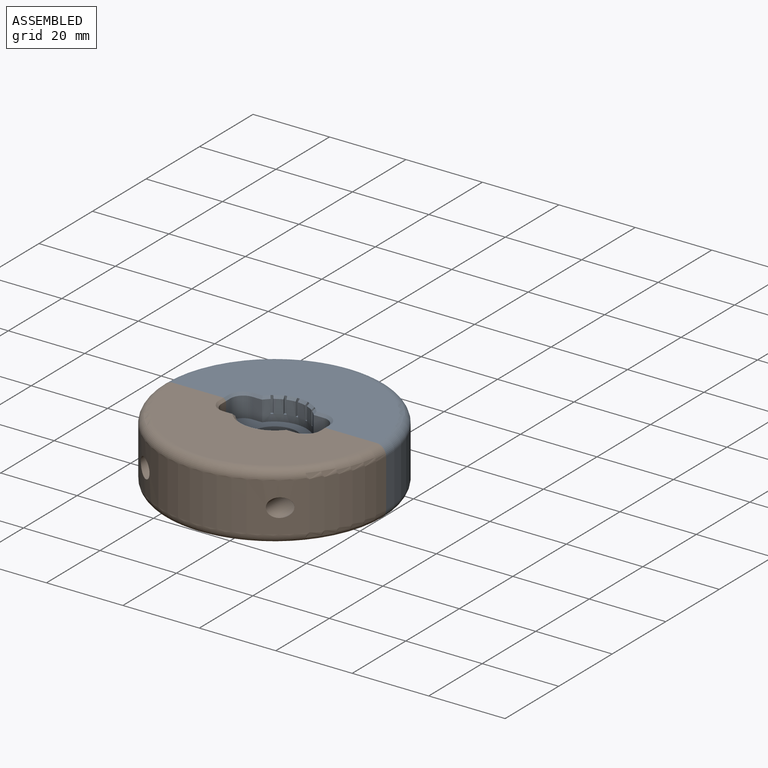
[diagram: assembled view]
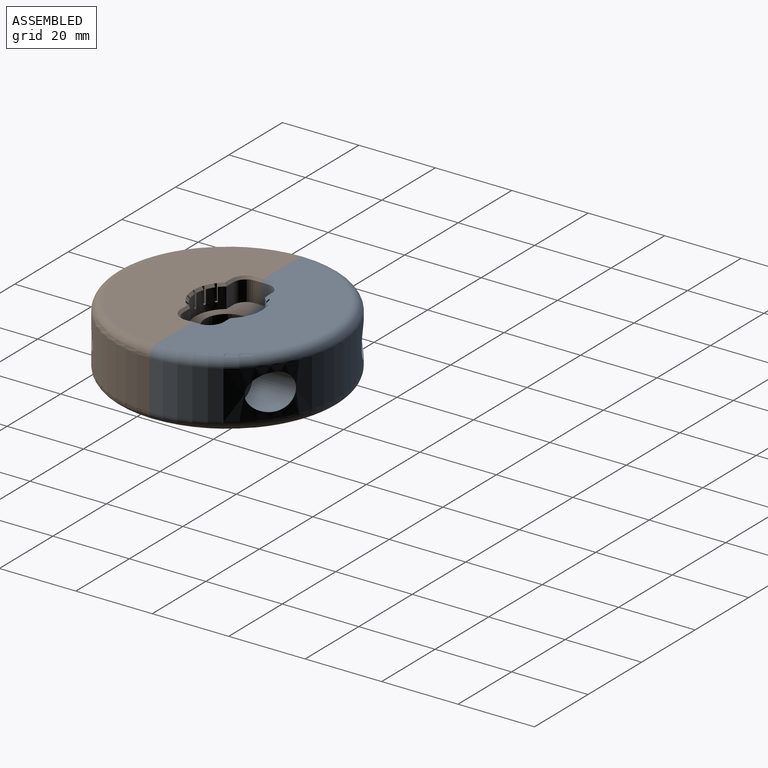
[diagram: assembled view, second angle]
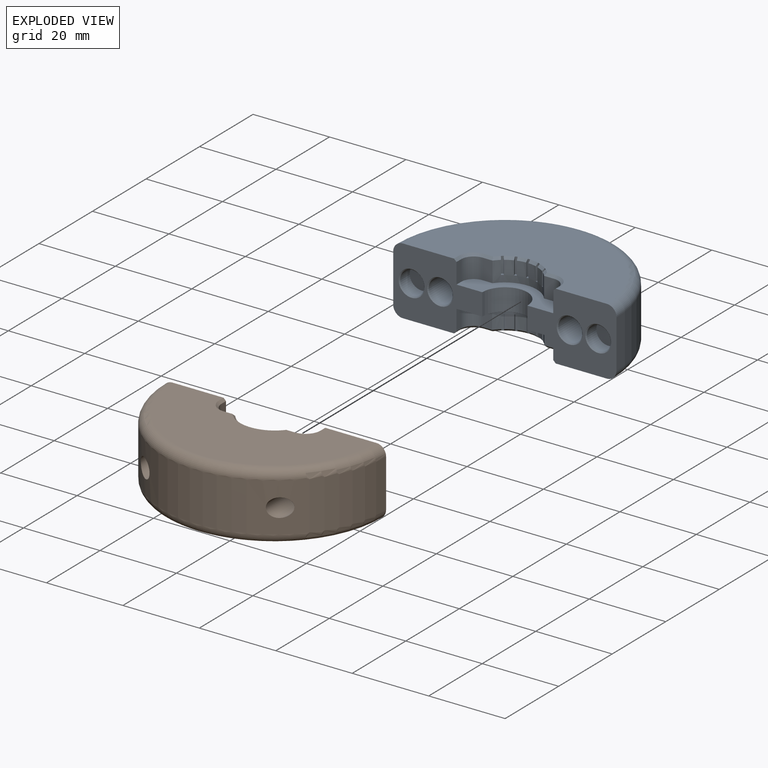
[diagram: exploded view]
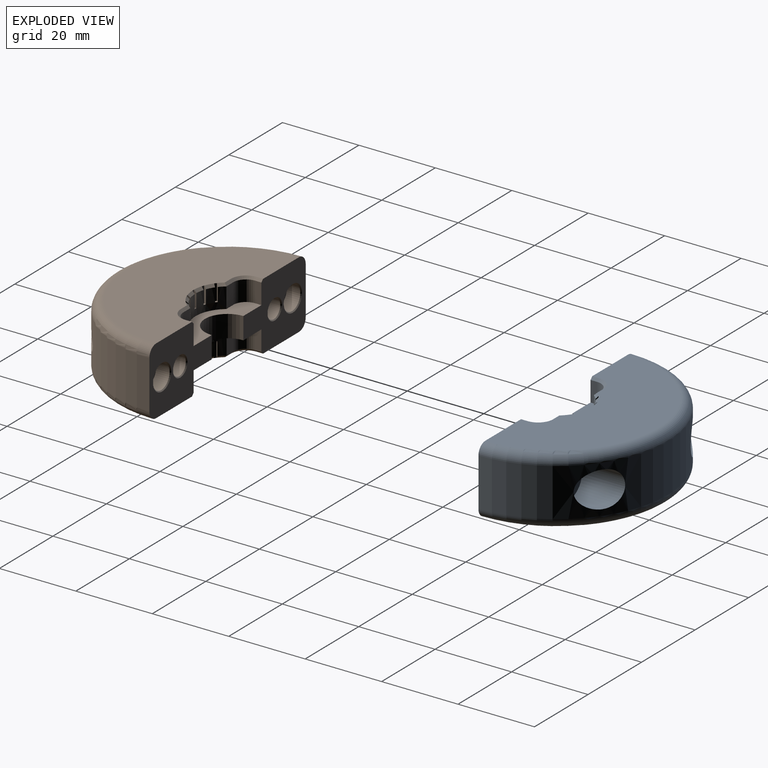
[diagram: exploded view, second angle]
ASSEMBLY  parts=2 mates=2
PART A: 102 faces, bbox 63.2x31.6x17.7 mm
  f0: cylinder r=8.48mm len=13.67mm, axis (0,0,-1), area 74mm2, adj f1,f2,f3,f4,f5,f6,f27,f30
  f1: cone r=8.48mm half-angle=45deg, axis (0,0,-1), area 2.1mm2, adj f0,f17,f83,f85
  f2: cone r=8.48mm half-angle=45deg, axis (0,0,-1), area 2.1mm2, adj f0,f17,f69,f81
  f3: cone r=8.48mm half-angle=45deg, axis (0,0,-1), area 1.7mm2, adj f0,f17,f47,f79
  f4: cone r=8.48mm half-angle=45deg, axis (0,0,-1), area 2.1mm2, adj f0,f17,f75,f78
  f5: cone r=8.48mm half-angle=45deg, axis (0,0,-1), area 1.7mm2, adj f0,f17,f45,f87
  f6: cone r=8.48mm half-angle=45deg, axis (0,0,-1), area 2.1mm2, adj f0,f17,f70,f74
  f7: cylinder r=8.48mm len=13.48mm, axis (0,0,1), area 72.3mm2, adj f8,f9,f10,f11,f12,f13,f20,f23
  f8: cone r=8.48mm half-angle=45deg, axis (0,0,1), area 2.1mm2, adj f7,f18,f49,f67
  f9: cone r=8.48mm half-angle=45deg, axis (0,0,1), area 2.1mm2, adj f7,f18,f61,f66
  f10: cone r=8.48mm half-angle=45deg, axis (0,0,1), area 1.6mm2, adj f7,f18,f39,f59
  f11: cone r=8.48mm half-angle=45deg, axis (0,0,1), area 2.1mm2, adj f7,f18,f55,f58
  f12: cone r=8.48mm half-angle=45deg, axis (0,0,1), area 1.6mm2, adj f7,f18,f38,f63
  f13: cone r=8.48mm half-angle=45deg, axis (0,0,1), area 2.1mm2, adj f7,f18,f50,f54
  f14: plane 23.3x17.68mm, normal (0,-1,0), area 255.6mm2, adj f16,f17,f18,f19,f20,f26,f27,f28
  f15: plane 23.3x17.68mm, normal (0,-1,0), area 255.6mm2, adj f16,f17,f18,f19,f20,f21,f27,f33
  f16: cylinder r=5.91mm len=11.81mm, axis (0,0,1), area 106.5mm2, adj f14,f15,f20,f27
  f17: plane 53.34x26.67mm, normal (0,0,-1), area 939mm2, adj f1,f2,f3,f4,f5,f6,f14,f15
  f18: plane 53.34x26.67mm, normal (0,0,1), area 940.8mm2, adj f8,f9,f10,f11,f12,f13,f14,f15
  f19: cylinder r=29.21mm len=58.42mm, axis (0,0,1), area 983.4mm2, adj f14,f15,f34,f35,f99,f101
  f20: plane 25.32x8.36mm, normal (0,0,1), area 99.1mm2, adj f7,f14,f15,f16,f21,f22,f23,f24
  f21: plane 5.33x1.72mm, normal (-1,0,0), area 9.2mm2, adj f15,f20,f22,f41
  f22: cylinder r=3.3mm len=5.33mm, axis (0,0,1), area 27.7mm2, adj f20,f21,f23,f40
  f23: plane 5.33x2.62mm, normal (0,-1,0), area 14mm2, adj f7,f20,f22,f39
  f24: plane 5.33x2.62mm, normal (0,-1,0), area 14mm2, adj f7,f20,f25,f38
  f25: cylinder r=3.3mm len=5.33mm, axis (0,0,1), area 27.7mm2, adj f20,f24,f26,f37
  f26: plane 5.33x1.72mm, normal (1,0,0), area 9.2mm2, adj f14,f20,f25,f36
  f27: plane 25.32x8.48mm, normal (0,0,-1), area 100.8mm2, adj f0,f14,f15,f16,f28,f29,f30,f31
  f28: plane 5.33x1.72mm, normal (1,0,0), area 9.2mm2, adj f14,f27,f29,f44
  f29: cylinder r=3.3mm len=5.33mm, axis (0,0,-1), area 27.7mm2, adj f27,f28,f30,f46
  f30: plane 5.33x2.52mm, normal (0,-1,0), area 13.5mm2, adj f0,f27,f29,f47
  f31: plane 5.33x2.52mm, normal (0,-1,0), area 13.5mm2, adj f0,f27,f32,f45
  f32: cylinder r=3.3mm len=5.33mm, axis (0,0,-1), area 27.7mm2, adj f27,f31,f33,f43
  f33: plane 5.33x1.72mm, normal (-1,0,0), area 9.2mm2, adj f15,f27,f32,f42
  f34: torus R=26.67mm, axis (0,0,1), area 354.6mm2, adj f14,f15,f18,f19
  f35: torus R=26.67mm, axis (0,0,1), area 354.6mm2, adj f14,f15,f17,f19
  f36: plane 1.72x0.64mm, normal (0.71,0,0.71), area 1.5mm2, adj f14,f18,f26,f37
  f37: cone r=3.3mm half-angle=45deg, axis (0,0,1), area 5.1mm2, adj f18,f25,f36,f38
  f38: plane 2.63x0.64mm, normal (0,-0.71,0.71), area 2.2mm2, adj f12,f18,f24,f37
  f39: plane 2.63x0.64mm, normal (0,-0.71,0.71), area 2.2mm2, adj f10,f18,f23,f40
  f40: cone r=3.3mm half-angle=45deg, axis (0,0,1), area 5.1mm2, adj f18,f22,f39,f41
  f41: plane 1.72x0.64mm, normal (-0.71,0,0.71), area 1.5mm2, adj f15,f18,f21,f40
  f42: plane 1.72x0.64mm, normal (-0.71,0,-0.71), area 1.5mm2, adj f15,f17,f33,f43
  f43: cone r=3.3mm half-angle=45deg, axis (0,0,-1), area 5.1mm2, adj f17,f32,f42,f45
  f44: plane 1.72x0.64mm, normal (0.71,0,-0.71), area 1.5mm2, adj f14,f17,f28,f46
  f45: plane 2.53x0.64mm, normal (0,-0.71,-0.71), area 2.1mm2, adj f5,f17,f31,f43
  f46: cone r=3.3mm half-angle=45deg, axis (0,0,-1), area 5.1mm2, adj f17,f29,f44,f47
  f47: plane 2.53x0.64mm, normal (0,-0.71,-0.71), area 2.1mm2, adj f3,f17,f30,f46
  f48: plane 0.64x0.61mm, normal (0,0,1), area 0.4mm2, adj f7,f49,f50,f51
  f49: plane 4.19x0.64mm, normal (1,0,0), area 2.5mm2, adj f7,f8,f48,f51
  f50: plane 4.19x0.64mm, normal (-1,0,0), area 2.5mm2, adj f7,f13,f48,f51
  f51: plane 4.19x0.61mm, normal (0,-1,0), area 2.6mm2, adj f18,f48,f49,f50
  f52: plane 0.8x0.78mm, normal (0,0,1), area 0.4mm2, adj f7,f53,f54,f55
  f53: plane 4.19x0.58mm, normal (-0.33,-0.95,0), area 2.6mm2, adj f18,f52,f54,f55
  f54: plane 4.19x0.6mm, normal (0.95,-0.33,0), area 2.5mm2, adj f7,f13,f52,f53
  f55: plane 4.19x0.6mm, normal (-0.95,0.33,0), area 2.5mm2, adj f7,f11,f52,f53
  f56: plane 0.88x0.87mm, normal (0,0,1), area 0.4mm2, adj f7,f57,f58,f59
  f57: plane 4.19x0.48mm, normal (-0.62,-0.79,0), area 2.6mm2, adj f18,f56,f58,f59
  f58: plane 4.19x0.5mm, normal (0.79,-0.62,0), area 2.5mm2, adj f7,f11,f56,f57
  f59: plane 4.19x0.5mm, normal (-0.79,0.62,0), area 2.5mm2, adj f7,f10,f56,f57
  f60: plane 0.88x0.87mm, normal (0,0,1), area 0.4mm2, adj f7,f61,f62,f63
  f61: plane 4.19x0.5mm, normal (-0.79,-0.62,0), area 2.5mm2, adj f7,f9,f60,f62
  f62: plane 4.19x0.48mm, normal (0.62,-0.79,0), area 2.6mm2, adj f18,f60,f61,f63
  f63: plane 4.19x0.5mm, normal (0.79,0.62,0), area 2.5mm2, adj f7,f12,f60,f62
  f64: plane 0.8x0.78mm, normal (0,0,1), area 0.4mm2, adj f7,f65,f66,f67
  f65: plane 4.19x0.58mm, normal (0.33,-0.95,0), area 2.6mm2, adj f18,f64,f66,f67
  f66: plane 4.19x0.6mm, normal (0.95,0.33,0), area 2.5mm2, adj f7,f9,f64,f65
  f67: plane 4.19x0.6mm, normal (-0.95,-0.33,0), area 2.5mm2, adj f7,f8,f64,f65
  f68: plane 0.64x0.61mm, normal (0,0,-1), area 0.4mm2, adj f0,f69,f70,f71
  f69: plane 4.19x0.64mm, normal (-1,0,0), area 2.5mm2, adj f0,f2,f68,f71
  f70: plane 4.19x0.64mm, normal (1,0,0), area 2.5mm2, adj f0,f6,f68,f71
  f71: plane 4.19x0.61mm, normal (0,-1,0), area 2.6mm2, adj f17,f68,f69,f70
  f72: plane 0.8x0.78mm, normal (0,0,-1), area 0.4mm2, adj f0,f73,f74,f75
  f73: plane 4.19x0.58mm, normal (0.33,-0.95,0), area 2.6mm2, adj f17,f72,f74,f75
  f74: plane 4.19x0.6mm, normal (-0.95,-0.33,0), area 2.5mm2, adj f0,f6,f72,f73
  f75: plane 4.19x0.6mm, normal (0.95,0.33,0), area 2.5mm2, adj f0,f4,f72,f73
  f76: plane 0.88x0.87mm, normal (0,0,-1), area 0.4mm2, adj f0,f77,f78,f79
  f77: plane 4.19x0.48mm, normal (0.62,-0.79,0), area 2.6mm2, adj f17,f76,f78,f79
  f78: plane 4.19x0.5mm, normal (-0.79,-0.62,0), area 2.5mm2, adj f0,f4,f76,f77
  f79: plane 4.19x0.5mm, normal (0.79,0.62,0), area 2.5mm2, adj f0,f3,f76,f77
  f80: plane 0.8x0.78mm, normal (0,0,-1), area 0.4mm2, adj f0,f81,f82,f83
  f81: plane 4.19x0.6mm, normal (0.95,-0.33,0), area 2.5mm2, adj f0,f2,f80,f82
  f82: plane 4.19x0.58mm, normal (-0.33,-0.95,0), area 2.6mm2, adj f17,f80,f81,f83
  f83: plane 4.19x0.6mm, normal (-0.95,0.33,0), area 2.5mm2, adj f0,f1,f80,f82
  f84: plane 0.88x0.87mm, normal (0,0,-1), area 0.4mm2, adj f0,f85,f86,f87
  f85: plane 4.19x0.5mm, normal (0.79,-0.62,0), area 2.5mm2, adj f0,f1,f84,f86
  f86: plane 4.19x0.48mm, normal (-0.62,-0.79,0), area 2.6mm2, adj f17,f84,f85,f87
  f87: plane 4.19x0.5mm, normal (-0.79,0.62,0), area 2.5mm2, adj f0,f5,f84,f86
  f88: cylinder r=3.14mm len=14.99mm, axis (0,-1,0), area 296mm2, adj f96,f100
  f89: cylinder r=3.14mm len=14.99mm, axis (0,-1,0), area 296mm2, adj f95,f98
  f90: cylinder r=3.14mm len=6.29mm, axis (0,-1,0), area 70.2mm2, adj f91,f94
  f91: plane 6.29x6.29mm, normal (0,-1,0), area 31mm2, adj f90
  f92: cylinder r=3.14mm len=6.29mm, axis (0,-1,0), area 70.2mm2, adj f93,f97
  f93: plane 6.29x6.29mm, normal (0,-1,0), area 31mm2, adj f92
  f94: cone r=3.14mm half-angle=45deg, axis (0,-1,0), area 7.4mm2, adj f15,f90
  f95: cone r=3.14mm half-angle=45deg, axis (0,-1,0), area 7.4mm2, adj f15,f89
  f96: cone r=3.14mm half-angle=45deg, axis (0,-1,0), area 7.4mm2, adj f14,f88
  f97: cone r=3.14mm half-angle=45deg, axis (0,-1,0), area 7.4mm2, adj f14,f92
  f98: plane 9.4x9.4mm, normal (0,1,0), area 38.3mm2, adj f89,f99
  f99: cylinder r=4.7mm len=11.28mm, axis (0,-1,0), area 241.9mm2, adj f19,f98
  f100: plane 9.4x9.4mm, normal (0,1,0), area 38.3mm2, adj f88,f101
  f101: cylinder r=4.7mm len=11.28mm, axis (0,-1,0), area 241.8mm2, adj f19,f100
PART B: 98 faces, bbox 63.2x31.6x17.7 mm
  f0: cylinder r=8.48mm len=13.67mm, axis (0,0,-1), area 74mm2, adj f1,f2,f3,f4,f5,f6,f27,f30
  f1: cone r=8.48mm half-angle=45deg, axis (0,0,-1), area 2.1mm2, adj f0,f17,f83,f85
  f2: cone r=8.48mm half-angle=45deg, axis (0,0,-1), area 2.1mm2, adj f0,f17,f69,f81
  f3: cone r=8.48mm half-angle=45deg, axis (0,0,-1), area 1.7mm2, adj f0,f17,f47,f79
  f4: cone r=8.48mm half-angle=45deg, axis (0,0,-1), area 2.1mm2, adj f0,f17,f75,f78
  f5: cone r=8.48mm half-angle=45deg, axis (0,0,-1), area 1.7mm2, adj f0,f17,f45,f87
  f6: cone r=8.48mm half-angle=45deg, axis (0,0,-1), area 2.1mm2, adj f0,f17,f70,f74
  f7: cylinder r=8.48mm len=13.48mm, axis (0,0,1), area 72.3mm2, adj f8,f9,f10,f11,f12,f13,f20,f23
  f8: cone r=8.48mm half-angle=45deg, axis (0,0,1), area 2.1mm2, adj f7,f18,f63,f65
  f9: cone r=8.48mm half-angle=45deg, axis (0,0,1), area 2.1mm2, adj f7,f18,f49,f61
  f10: cone r=8.48mm half-angle=45deg, axis (0,0,1), area 1.6mm2, adj f7,f18,f39,f59
  f11: cone r=8.48mm half-angle=45deg, axis (0,0,1), area 2.1mm2, adj f7,f18,f55,f58
  f12: cone r=8.48mm half-angle=45deg, axis (0,0,1), area 1.6mm2, adj f7,f18,f38,f67
  f13: cone r=8.48mm half-angle=45deg, axis (0,0,1), area 2.1mm2, adj f7,f18,f50,f54
  f14: plane 23.3x17.68mm, normal (0,-1,0), area 269.1mm2, adj f16,f17,f18,f19,f20,f26,f27,f28
  f15: plane 23.3x17.68mm, normal (0,-1,0), area 269.1mm2, adj f16,f17,f18,f19,f20,f21,f27,f33
  f16: cylinder r=5.91mm len=11.81mm, axis (0,0,1), area 106.5mm2, adj f14,f15,f20,f27
  f17: plane 53.34x26.67mm, normal (0,0,-1), area 939mm2, adj f1,f2,f3,f4,f5,f6,f14,f15
  f18: plane 53.34x26.67mm, normal (0,0,1), area 940.8mm2, adj f8,f9,f10,f11,f12,f13,f14,f15
  f19: cylinder r=29.21mm len=58.42mm, axis (0,0,1), area 1109.1mm2, adj f14,f15,f34,f35,f88,f89
  f20: plane 25.32x8.36mm, normal (0,0,1), area 99.1mm2, adj f7,f14,f15,f16,f21,f22,f23,f24
  f21: plane 5.33x1.72mm, normal (-1,0,0), area 9.2mm2, adj f15,f20,f22,f41
  f22: cylinder r=3.3mm len=5.33mm, axis (0,0,1), area 27.7mm2, adj f20,f21,f23,f40
  f23: plane 5.33x2.62mm, normal (0,-1,0), area 14mm2, adj f7,f20,f22,f39
  f24: plane 5.33x2.62mm, normal (0,-1,0), area 14mm2, adj f7,f20,f25,f38
  f25: cylinder r=3.3mm len=5.33mm, axis (0,0,1), area 27.7mm2, adj f20,f24,f26,f37
  f26: plane 5.33x1.72mm, normal (1,0,0), area 9.2mm2, adj f14,f20,f25,f36
  f27: plane 25.32x8.48mm, normal (0,0,-1), area 100.8mm2, adj f0,f14,f15,f16,f28,f29,f30,f31
  f28: plane 5.33x1.72mm, normal (1,0,0), area 9.2mm2, adj f14,f27,f29,f44
  f29: cylinder r=3.3mm len=5.33mm, axis (0,0,-1), area 27.7mm2, adj f27,f28,f30,f46
  f30: plane 5.33x2.52mm, normal (0,-1,0), area 13.5mm2, adj f0,f27,f29,f47
  f31: plane 5.33x2.52mm, normal (0,-1,0), area 13.5mm2, adj f0,f27,f32,f45
  f32: cylinder r=3.3mm len=5.33mm, axis (0,0,-1), area 27.7mm2, adj f27,f31,f33,f43
  f33: plane 5.33x1.72mm, normal (-1,0,0), area 9.2mm2, adj f15,f27,f32,f42
  f34: torus R=26.67mm, axis (0,0,1), area 354.6mm2, adj f14,f15,f18,f19
  f35: torus R=26.67mm, axis (0,0,1), area 354.6mm2, adj f14,f15,f17,f19
  f36: plane 1.72x0.64mm, normal (0.71,0,0.71), area 1.5mm2, adj f14,f18,f26,f37
  f37: cone r=3.3mm half-angle=45deg, axis (0,0,1), area 5.1mm2, adj f18,f25,f36,f38
  f38: plane 2.63x0.64mm, normal (0,-0.71,0.71), area 2.2mm2, adj f12,f18,f24,f37
  f39: plane 2.63x0.64mm, normal (0,-0.71,0.71), area 2.2mm2, adj f10,f18,f23,f40
  f40: cone r=3.3mm half-angle=45deg, axis (0,0,1), area 5.1mm2, adj f18,f22,f39,f41
  f41: plane 1.72x0.64mm, normal (-0.71,0,0.71), area 1.5mm2, adj f15,f18,f21,f40
  f42: plane 1.72x0.64mm, normal (-0.71,0,-0.71), area 1.5mm2, adj f15,f17,f33,f43
  f43: cone r=3.3mm half-angle=45deg, axis (0,0,-1), area 5.1mm2, adj f17,f32,f42,f45
  f44: plane 1.72x0.64mm, normal (0.71,0,-0.71), area 1.5mm2, adj f14,f17,f28,f46
  f45: plane 2.53x0.64mm, normal (0,-0.71,-0.71), area 2.1mm2, adj f5,f17,f31,f43
  f46: cone r=3.3mm half-angle=45deg, axis (0,0,-1), area 5.1mm2, adj f17,f29,f44,f47
  f47: plane 2.53x0.64mm, normal (0,-0.71,-0.71), area 2.1mm2, adj f3,f17,f30,f46
  f48: plane 0.64x0.61mm, normal (0,0,1), area 0.4mm2, adj f7,f49,f50,f51
  f49: plane 4.19x0.64mm, normal (1,0,0), area 2.5mm2, adj f7,f9,f48,f51
  f50: plane 4.19x0.64mm, normal (-1,0,0), area 2.5mm2, adj f7,f13,f48,f51
  f51: plane 4.19x0.61mm, normal (0,-1,0), area 2.6mm2, adj f18,f48,f49,f50
  f52: plane 0.8x0.78mm, normal (0,0,1), area 0.4mm2, adj f7,f53,f54,f55
  f53: plane 4.19x0.58mm, normal (-0.33,-0.95,0), area 2.6mm2, adj f18,f52,f54,f55
  f54: plane 4.19x0.6mm, normal (0.95,-0.33,0), area 2.5mm2, adj f7,f13,f52,f53
  f55: plane 4.19x0.6mm, normal (-0.95,0.33,0), area 2.5mm2, adj f7,f11,f52,f53
  f56: plane 0.88x0.87mm, normal (0,0,1), area 0.4mm2, adj f7,f57,f58,f59
  f57: plane 4.19x0.48mm, normal (-0.62,-0.79,0), area 2.6mm2, adj f18,f56,f58,f59
  f58: plane 4.19x0.5mm, normal (0.79,-0.62,0), area 2.5mm2, adj f7,f11,f56,f57
  f59: plane 4.19x0.5mm, normal (-0.79,0.62,0), area 2.5mm2, adj f7,f10,f56,f57
  f60: plane 0.8x0.78mm, normal (0,0,1), area 0.4mm2, adj f7,f61,f62,f63
  f61: plane 4.19x0.6mm, normal (-0.95,-0.33,0), area 2.5mm2, adj f7,f9,f60,f62
  f62: plane 4.19x0.58mm, normal (0.33,-0.95,0), area 2.6mm2, adj f18,f60,f61,f63
  f63: plane 4.19x0.6mm, normal (0.95,0.33,0), area 2.5mm2, adj f7,f8,f60,f62
  f64: plane 0.88x0.87mm, normal (0,0,1), area 0.4mm2, adj f7,f65,f66,f67
  f65: plane 4.19x0.5mm, normal (-0.79,-0.62,0), area 2.5mm2, adj f7,f8,f64,f66
  f66: plane 4.19x0.48mm, normal (0.62,-0.79,0), area 2.6mm2, adj f18,f64,f65,f67
  f67: plane 4.19x0.5mm, normal (0.79,0.62,0), area 2.5mm2, adj f7,f12,f64,f66
  f68: plane 0.64x0.61mm, normal (0,0,-1), area 0.4mm2, adj f0,f69,f70,f71
  f69: plane 4.19x0.64mm, normal (-1,0,0), area 2.5mm2, adj f0,f2,f68,f71
  f70: plane 4.19x0.64mm, normal (1,0,0), area 2.5mm2, adj f0,f6,f68,f71
  f71: plane 4.19x0.61mm, normal (0,-1,0), area 2.6mm2, adj f17,f68,f69,f70
  f72: plane 0.8x0.78mm, normal (0,0,-1), area 0.4mm2, adj f0,f73,f74,f75
  f73: plane 4.19x0.58mm, normal (0.33,-0.95,0), area 2.6mm2, adj f17,f72,f74,f75
  f74: plane 4.19x0.6mm, normal (-0.95,-0.33,0), area 2.5mm2, adj f0,f6,f72,f73
  f75: plane 4.19x0.6mm, normal (0.95,0.33,0), area 2.5mm2, adj f0,f4,f72,f73
  f76: plane 0.88x0.87mm, normal (0,0,-1), area 0.4mm2, adj f0,f77,f78,f79
  f77: plane 4.19x0.48mm, normal (0.62,-0.79,0), area 2.6mm2, adj f17,f76,f78,f79
  f78: plane 4.19x0.5mm, normal (-0.79,-0.62,0), area 2.5mm2, adj f0,f4,f76,f77
  f79: plane 4.19x0.5mm, normal (0.79,0.62,0), area 2.5mm2, adj f0,f3,f76,f77
  f80: plane 0.8x0.78mm, normal (0,0,-1), area 0.4mm2, adj f0,f81,f82,f83
  f81: plane 4.19x0.6mm, normal (0.95,-0.33,0), area 2.5mm2, adj f0,f2,f80,f82
  f82: plane 4.19x0.58mm, normal (-0.33,-0.95,0), area 2.6mm2, adj f17,f80,f81,f83
  f83: plane 4.19x0.6mm, normal (-0.95,0.33,0), area 2.5mm2, adj f0,f1,f80,f82
  f84: plane 0.88x0.87mm, normal (0,0,-1), area 0.4mm2, adj f0,f85,f86,f87
  f85: plane 4.19x0.5mm, normal (0.79,-0.62,0), area 2.5mm2, adj f0,f1,f84,f86
  f86: plane 4.19x0.48mm, normal (-0.62,-0.79,0), area 2.6mm2, adj f17,f84,f85,f87
  f87: plane 4.19x0.5mm, normal (-0.79,0.62,0), area 2.5mm2, adj f0,f5,f84,f86
  f88: cylinder r=2.44mm len=24.68mm, axis (0,-1,0), area 351.1mm2, adj f19,f96
  f89: cylinder r=2.44mm len=24.68mm, axis (0,-1,0), area 351.1mm2, adj f19,f95
  f90: cylinder r=3.14mm len=6.29mm, axis (0,-1,0), area 70.2mm2, adj f91,f94
  f91: plane 6.29x6.29mm, normal (0,-1,0), area 31mm2, adj f90
  f92: cylinder r=3.14mm len=6.29mm, axis (0,-1,0), area 70.2mm2, adj f93,f97
  f93: plane 6.29x6.29mm, normal (0,-1,0), area 31mm2, adj f92
  f94: cone r=3.14mm half-angle=45deg, axis (0,-1,0), area 7.4mm2, adj f15,f90
  f95: cone r=2.44mm half-angle=45deg, axis (0,-1,0), area 5.8mm2, adj f15,f89
  f96: cone r=2.44mm half-angle=45deg, axis (0,-1,0), area 5.8mm2, adj f14,f88
  f97: cone r=3.14mm half-angle=45deg, axis (0,-1,0), area 7.4mm2, adj f14,f92
PLACE A rot(axis=(1,0,0),0deg) t=(-26.13,45.38,27.77)mm
PLACE B rot(axis=(0,0,1),180deg) t=(-26.13,45.38,27.77)mm
MATE cylindrical A.f90 <-> B.f92  axis (0,-1,0) through (-1.72,45.64,18.93)mm
MATE planar A.f15 <-> B.f14  axis (0,-1,0) through (0.54,45.38,12.64)mm
